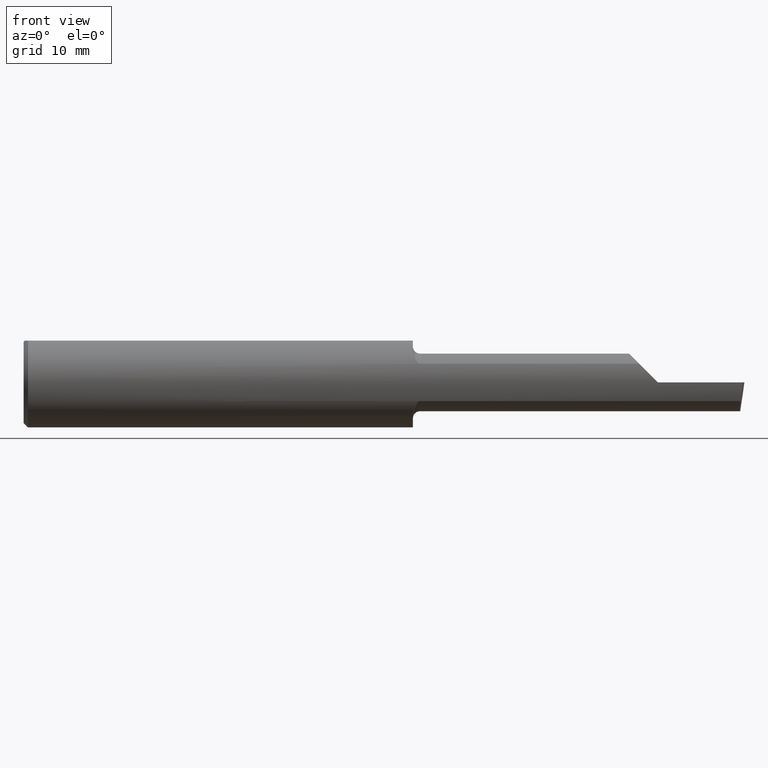
[diagram: clean part render]
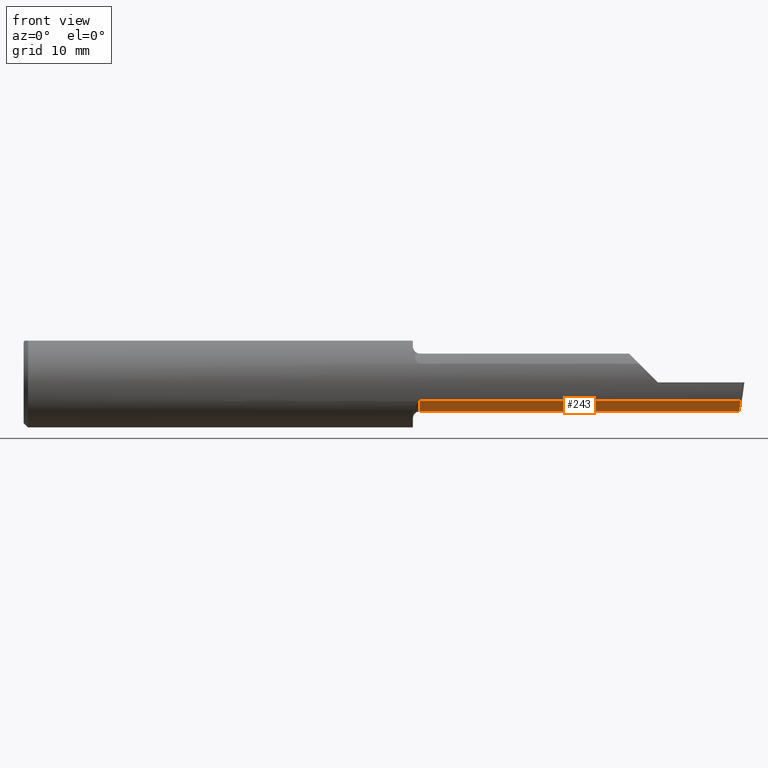
[diagram: same view with one face highlighted and labeled with its STEP entity id]
A machine part, front view. The second image highlights one B-rep face of the part: STEP entity #243.
In plain terms, the highlighted cylindrical surface (edge-blend (fillet) strip) has radius 2.5375 mm, axis along (-1, -0, -0).
Its self-contained STEP definition (entity closure, byte-faithful):
#5 = CARTESIAN_POINT ( 'NONE',  ( 1.375000000000000000, -0.06599999999999997535, -0.09989999999999990554 ) ) ;
#8 = CYLINDRICAL_SURFACE ( 'NONE', #389, 0.09989999999999991942 ) ;
#9 = CARTESIAN_POINT ( 'NONE',  ( 2.500000000000000000, -0.06599999999999998923, -0.09990000000000000269 ) ) ;
#28 = FACE_OUTER_BOUND ( 'NONE', #705, .T. ) ;
#35 = VERTEX_POINT ( 'NONE', #5 ) ;
#53 = DIRECTION ( 'NONE',  ( -1.000000000000000000, -0.0000000000000000000, -0.0000000000000000000 ) ) ;
#61 = LINE ( 'NONE', #161, #384 ) ;
#69 = AXIS2_PLACEMENT_3D ( 'NONE', #491, #73, #439 ) ;
#73 = DIRECTION ( 'NONE',  ( -1.000000000000000000, -0.0000000000000000000, -0.0000000000000000000 ) ) ;
#74 = EDGE_CURVE ( 'NONE', #691, #569, #563, .T. ) ;
#97 = DIRECTION ( 'NONE',  ( -1.000000000000000000, -0.0000000000000000000, -0.0000000000000000000 ) ) ;
#130 = LINE ( 'NONE', #9, #704 ) ;
#151 = EDGE_CURVE ( 'NONE', #691, #376, #61, .T. ) ;
#161 = CARTESIAN_POINT ( 'NONE',  ( 1.802499999999999991, -0.1419939393939394501, -0.06484544066771573412 ) ) ;
#193 = CIRCLE ( 'NONE', #69, 0.09989999999999990554 ) ;
#216 = CARTESIAN_POINT ( 'NONE',  ( 2.484118579027826179, -0.06599999999999998923, -0.09990000000000000269 ) ) ;
#224 = CARTESIAN_POINT ( 'NONE',  ( 2.486434241799654998, -0.1419939393939394501, -0.06484544066771573412 ) ) ;
#241 = ORIENTED_EDGE ( 'NONE', *, *, #279, .F. ) ;
#243 = ADVANCED_FACE ( 'NONE', ( #28 ), #8, .T. ) ;
#279 = EDGE_CURVE ( 'NONE', #297, #35, #481, .T. ) ;
#285 = CARTESIAN_POINT ( 'NONE',  ( 2.484162675884399540, -0.1227037540429563867, -0.08745207517224926064 ) ) ;
#293 = DIRECTION ( 'NONE',  ( -1.000000000000000000, -0.0000000000000000000, -0.0000000000000000000 ) ) ;
#297 = VERTEX_POINT ( 'NONE', #357 ) ;
#324 = ORIENTED_EDGE ( 'NONE', *, *, #421, .F. ) ;
#342 = CARTESIAN_POINT ( 'NONE',  ( 2.484118579027826179, -0.06599999999999998923, -0.09990000000000000269 ) ) ;
#357 = CARTESIAN_POINT ( 'NONE',  ( 2.229999999999999982, -0.06599999999999998923, -0.09990000000000000269 ) ) ;
#364 = DIRECTION ( 'NONE',  ( 0.0000000000000000000, 0.0000000000000000000, 1.000000000000000000 ) ) ;
#376 = VERTEX_POINT ( 'NONE', #448 ) ;
#384 = VECTOR ( 'NONE', #53, 39.37007874015748143 ) ;
#389 = AXIS2_PLACEMENT_3D ( 'NONE', #651, #293, #364 ) ;
#419 = ORIENTED_EDGE ( 'NONE', *, *, #703, .F. ) ;
#421 = EDGE_CURVE ( 'NONE', #35, #376, #193, .T. ) ;
#434 = DIRECTION ( 'NONE',  ( -1.000000000000000000, 5.691349986800549142E-18, -0.0000000000000000000 ) ) ;
#436 = CARTESIAN_POINT ( 'NONE',  ( 2.486434241799654998, -0.1419939393939394501, -0.06484544066771573412 ) ) ;
#439 = DIRECTION ( 'NONE',  ( 0.0000000000000000000, 0.0000000000000000000, 1.000000000000000000 ) ) ;
#448 = CARTESIAN_POINT ( 'NONE',  ( 1.375000000000000000, -0.1419939393939393113, -0.06484544066771588677 ) ) ;
#456 = CARTESIAN_POINT ( 'NONE',  ( 0.0000000000000000000, -0.06599999999999998923, -0.09989999999999991942 ) ) ;
#481 = LINE ( 'NONE', #456, #706 ) ;
#491 = CARTESIAN_POINT ( 'NONE',  ( 1.375000000000000000, -0.06599999999999998923, 0.0000000000000000000 ) ) ;
#563 =( BOUNDED_CURVE ( )  B_SPLINE_CURVE ( 3, ( #224, #285, #622, #216 ),
 .UNSPECIFIED., .F., .T. ) 
 B_SPLINE_CURVE_WITH_KNOTS ( ( 4, 4 ),
 ( 5.628843761710943028, 6.493234751459850074 ),
 .UNSPECIFIED. ) 
 CURVE ( )  GEOMETRIC_REPRESENTATION_ITEM ( )  RATIONAL_B_SPLINE_CURVE ( ( 1.000000000000000000, 0.9386988813357769468, 0.9386988813357769468, 1.000000000000000000 ) ) 
 REPRESENTATION_ITEM ( '' )  );
#569 = VERTEX_POINT ( 'NONE', #342 ) ;
#575 = ORIENTED_EDGE ( 'NONE', *, *, #151, .T. ) ;
#622 = CARTESIAN_POINT ( 'NONE',  ( 2.483340380677750314, -0.09571819601686556989, -0.09989999999999991942 ) ) ;
#630 = ORIENTED_EDGE ( 'NONE', *, *, #74, .F. ) ;
#651 = CARTESIAN_POINT ( 'NONE',  ( 0.0000000000000000000, -0.06599999999999998923, 0.0000000000000000000 ) ) ;
#691 = VERTEX_POINT ( 'NONE', #436 ) ;
#703 = EDGE_CURVE ( 'NONE', #569, #297, #130, .T. ) ;
#704 = VECTOR ( 'NONE', #434, 39.37007874015748143 ) ;
#705 = EDGE_LOOP ( 'NONE', ( #241, #419, #630, #575, #324 ) ) ;
#706 = VECTOR ( 'NONE', #97, 39.37007874015748143 ) ;